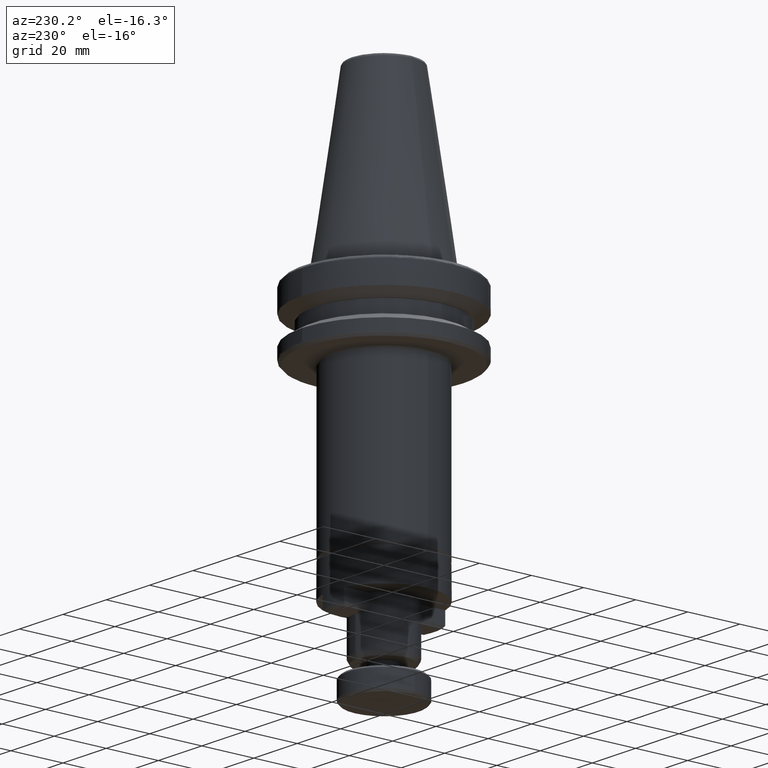
[diagram: clean part render]
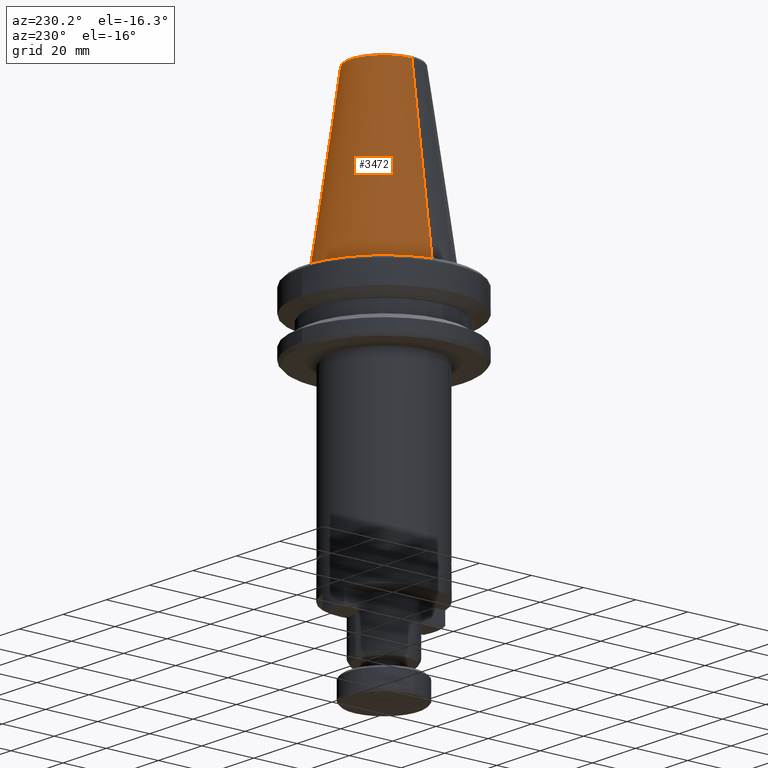
[diagram: same view with one face highlighted and labeled with its STEP entity id]
A machine part, auxiliary view. The second image highlights one B-rep face of the part: STEP entity #3472.
In plain terms, the highlighted conical surface has half-angle 8.297 deg.
Its self-contained STEP definition (entity closure, byte-faithful):
#29 = CARTESIAN_POINT ( 'NONE',  ( 0.0000000000000000000, 0.0000000000000000000, 6.238411189407974800 ) ) ;
#55 = ORIENTED_EDGE ( 'NONE', *, *, #1661, .F. ) ;
#175 = EDGE_CURVE ( 'NONE', #867, #2257, #195, .T. ) ;
#195 = LINE ( 'NONE', #2099, #3360 ) ;
#218 = CARTESIAN_POINT ( 'NONE',  ( -22.22499999999999800, 0.0000000000000000000, 6.238411189407974800 ) ) ;
#253 = CARTESIAN_POINT ( 'NONE',  ( 12.81219950700000300, 1.569041911628485000E-015, 70.78271941640797100 ) ) ;
#332 = CARTESIAN_POINT ( 'NONE',  ( 12.81219950696690200, -3.941739068562204500E-009, 70.78271941641652600 ) ) ;
#485 = CARTESIAN_POINT ( 'NONE',  ( 22.22499999999999800, 2.721777511104992100E-015, 6.238411189407974800 ) ) ;
#550 = CIRCLE ( 'NONE', #2068, 12.81219950700000300 ) ;
#636 = CIRCLE ( 'NONE', #1026, 22.22499999999999800 ) ;
#804 = CARTESIAN_POINT ( 'NONE',  ( 0.0000000000000000000, 0.0000000000000000000, 70.78271941640797100 ) ) ;
#867 = VERTEX_POINT ( 'NONE', #3644 ) ;
#1026 = AXIS2_PLACEMENT_3D ( 'NONE', #29, #1355, #2548 ) ;
#1355 = DIRECTION ( 'NONE',  ( 0.0000000000000000000, 0.0000000000000000000, 1.000000000000000000 ) ) ;
#1661 = EDGE_CURVE ( 'NONE', #1934, #867, #550, .T. ) ;
#1848 = DIRECTION ( 'NONE',  ( -1.000000000000000000, 8.881784197001252300E-016, 2.166339635943424900E-015 ) ) ;
#1858 = EDGE_CURVE ( 'NONE', #2326, #2257, #636, .T. ) ;
#1934 = VERTEX_POINT ( 'NONE', #332 ) ;
#2068 = AXIS2_PLACEMENT_3D ( 'NONE', #2987, #2189, #1848 ) ;
#2085 = CONICAL_SURFACE ( 'NONE', #2302, 12.81219950700000300, 0.1448138465489547400 ) ;
#2099 = CARTESIAN_POINT ( 'NONE',  ( -12.81219950700000300, 0.0000000000000000000, 70.78271941640797100 ) ) ;
#2125 = ORIENTED_EDGE ( 'NONE', *, *, #2516, .T. ) ;
#2132 = VECTOR ( 'NONE', #2941, 1000.000000000000000 ) ;
#2189 = DIRECTION ( 'NONE',  ( -0.0000000000000000000, -0.0000000000000000000, 1.000000000000000000 ) ) ;
#2257 = VERTEX_POINT ( 'NONE', #218 ) ;
#2302 = AXIS2_PLACEMENT_3D ( 'NONE', #804, #3647, #3688 ) ;
#2326 = VERTEX_POINT ( 'NONE', #485 ) ;
#2516 = EDGE_CURVE ( 'NONE', #1934, #2326, #3570, .T. ) ;
#2548 = DIRECTION ( 'NONE',  ( 1.000000000000000000, 0.0000000000000000000, 0.0000000000000000000 ) ) ;
#2733 = EDGE_LOOP ( 'NONE', ( #55, #2125, #3120, #3300 ) ) ;
#2941 = DIRECTION ( 'NONE',  ( 0.1443082272688266400, 1.767266086153973400E-017, -0.9895327864919528600 ) ) ;
#2987 = CARTESIAN_POINT ( 'NONE',  ( 0.0000000000000000000, 0.0000000000000000000, 70.78271941640794300 ) ) ;
#3120 = ORIENTED_EDGE ( 'NONE', *, *, #1858, .T. ) ;
#3197 = FACE_OUTER_BOUND ( 'NONE', #2733, .T. ) ;
#3300 = ORIENTED_EDGE ( 'NONE', *, *, #175, .F. ) ;
#3353 = DIRECTION ( 'NONE',  ( -0.1443082272688266400, 0.0000000000000000000, -0.9895327864919528600 ) ) ;
#3360 = VECTOR ( 'NONE', #3353, 1000.000000000000000 ) ;
#3472 = ADVANCED_FACE ( 'NONE', ( #3197 ), #2085, .T. ) ;
#3570 = LINE ( 'NONE', #253, #2132 ) ;
#3644 = CARTESIAN_POINT ( 'NONE',  ( -12.81219950696881500, -1.150453881886354600E-009, 70.78271941640339500 ) ) ;
#3647 = DIRECTION ( 'NONE',  ( 0.0000000000000000000, 0.0000000000000000000, -1.000000000000000000 ) ) ;
#3688 = DIRECTION ( 'NONE',  ( -1.000000000000000000, 0.0000000000000000000, 0.0000000000000000000 ) ) ;